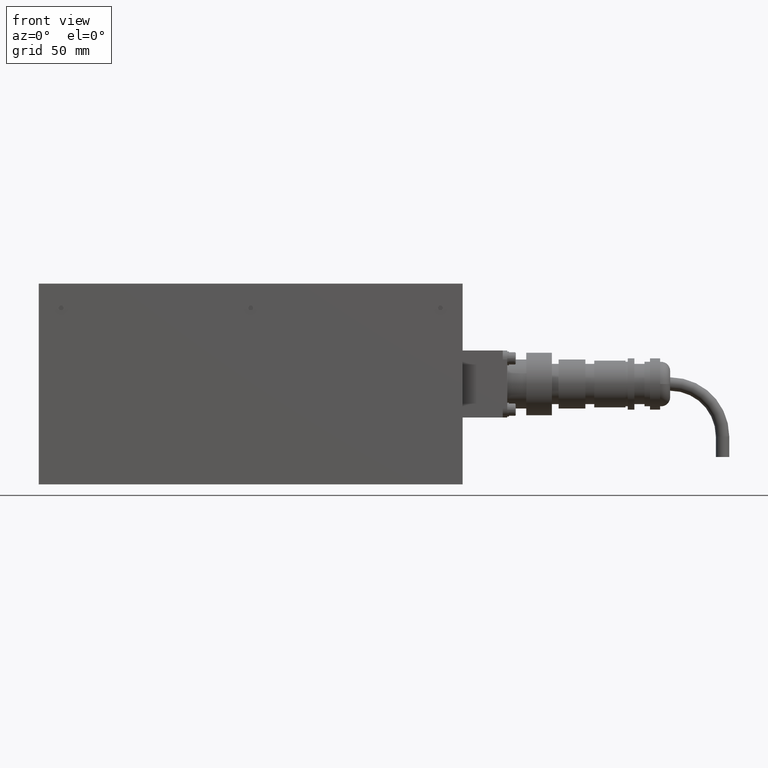
[diagram: clean part render]
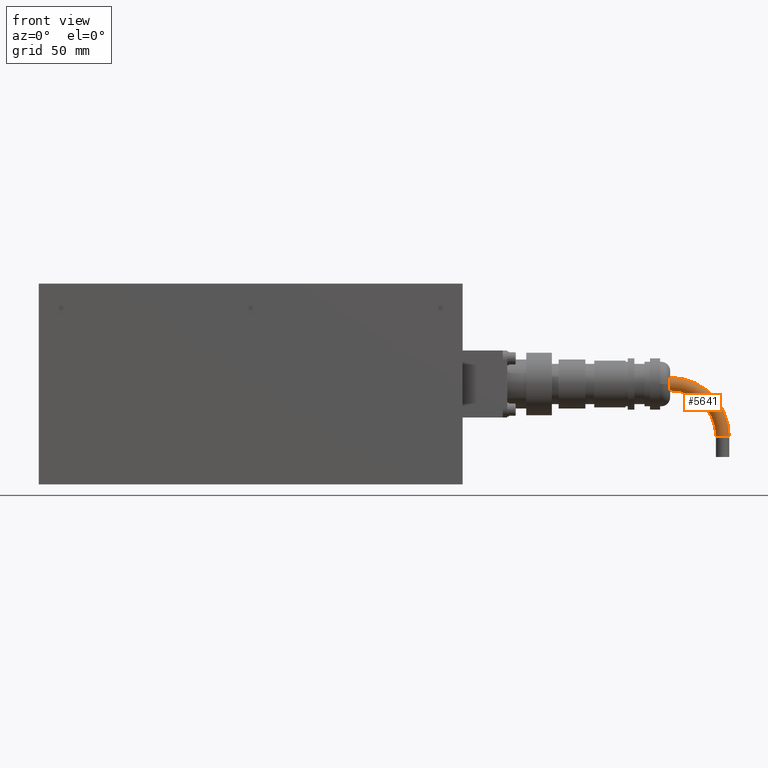
[diagram: same view with one face highlighted and labeled with its STEP entity id]
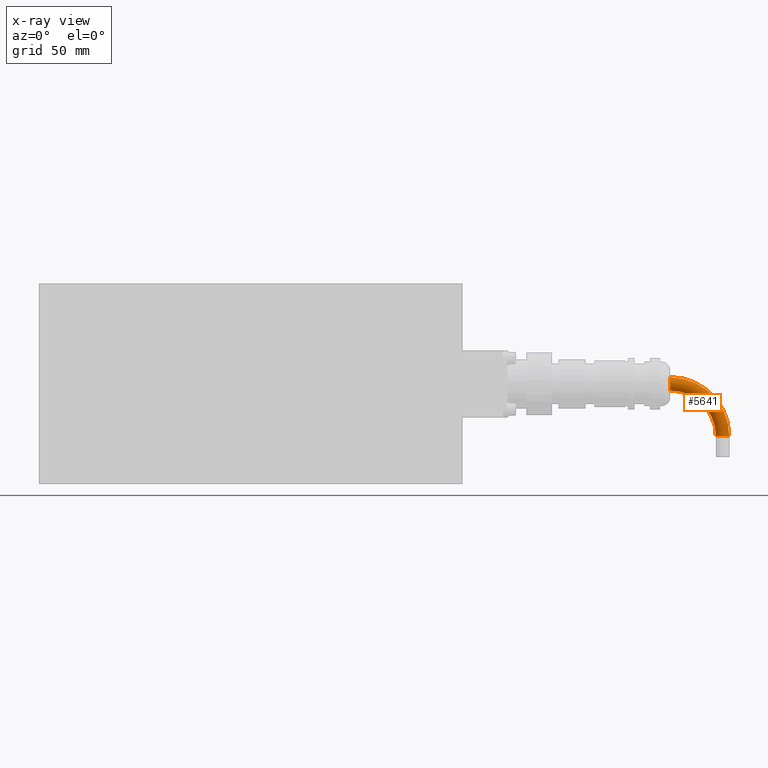
[diagram: x-ray of the same camera — body ghosted, the highlighted face saturated]
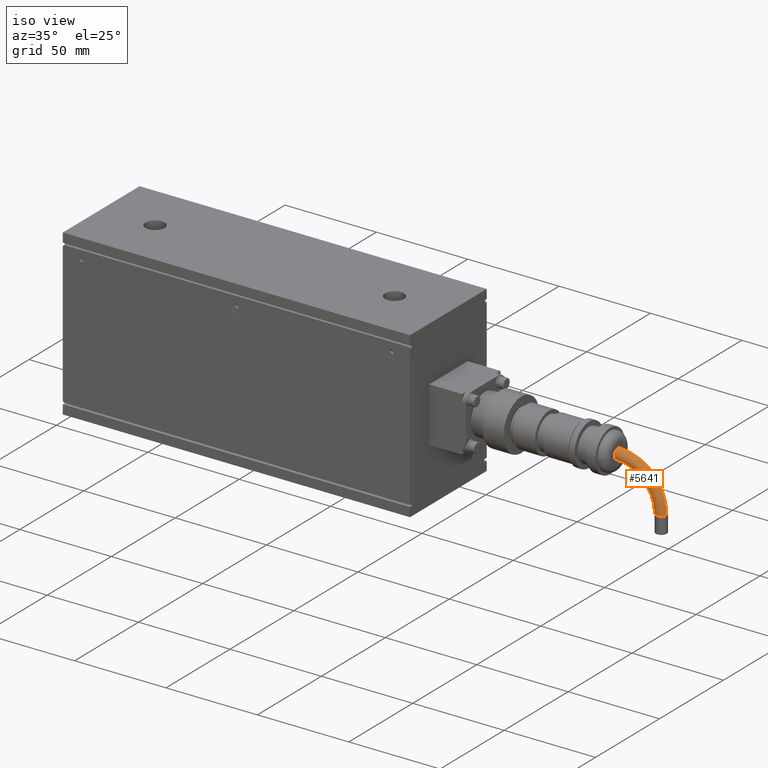
[diagram: same view with one face highlighted and labeled with its STEP entity id]
A machine part, front view. The second image highlights one B-rep face of the part: STEP entity #5641.
The next image is the same camera in x-ray: the body ghosted, the highlighted face saturated — about 0% of this face is hidden behind the body in this view.
A second angle (iso view) of the same face is appended — the face is thin or edge-on in the first view.
In plain terms, the highlighted toroidal blend (fillet) surface has major radius 23.4993 mm and minor (blend) radius 3 mm.
Its self-contained STEP definition (entity closure, byte-faithful):
#3573=CARTESIAN_POINT('',(-23.499300000003235,109.749299999999830,-3.673819E-016));
#3574=VERTEX_POINT('',#3573);
#3575=CARTESIAN_POINT('',(2.999999999996586,83.250000000000000,0.0));
#3576=VERTEX_POINT('',#3575);
#3577=CARTESIAN_POINT('',(-23.499300000003249,83.250000000000000,0.0));
#3578=DIRECTION('',(0.0,0.0,-1.0));
#3579=DIRECTION('',(1.0,0.0,0.0));
#3580=AXIS2_PLACEMENT_3D('',#3577,#3578,#3579);
#3581=CIRCLE('',#3580,26.499299999999835);
#3582=EDGE_CURVE('',#3574,#3576,#3581,.T.);
#3584=CARTESIAN_POINT('',(-23.499300000003235,103.749299999999830,0.0));
#3585=VERTEX_POINT('',#3584);
#3593=CARTESIAN_POINT('',(-3.000000000003413,83.250000000000000,0.0));
#3594=VERTEX_POINT('',#3593);
#3595=CARTESIAN_POINT('',(-23.499300000003249,83.250000000000000,-3.673819E-016));
#3596=DIRECTION('',(0.0,0.0,-1.0));
#3597=DIRECTION('',(1.0,0.0,0.0));
#3598=AXIS2_PLACEMENT_3D('',#3595,#3596,#3597);
#3599=CIRCLE('',#3598,20.499299999999835);
#3600=EDGE_CURVE('',#3585,#3594,#3599,.T.);
#3682=CARTESIAN_POINT('',(-23.499300000003231,106.749299999999830,0.0));
#3683=DIRECTION('',(1.0,0.0,0.0));
#3684=DIRECTION('',(0.0,-1.0,0.0));
#3685=AXIS2_PLACEMENT_3D('',#3682,#3683,#3684);
#3686=CIRCLE('',#3685,3.0);
#3687=EDGE_CURVE('',#3585,#3574,#3686,.T.);
#5172=CARTESIAN_POINT('',(-3.414158E-012,83.250000000000000,0.0));
#5173=DIRECTION('',(0.0,-1.0,0.0));
#5174=DIRECTION('',(0.0,0.0,1.0));
#5175=AXIS2_PLACEMENT_3D('',#5172,#5173,#5174);
#5176=CIRCLE('',#5175,3.0);
#5177=EDGE_CURVE('',#3594,#3576,#5176,.T.);
#5630=CARTESIAN_POINT('',(-23.499300000003249,83.250000000000000,0.0));
#5631=DIRECTION('',(0.0,0.0,1.0));
#5632=DIRECTION('',(1.0,0.0,0.0));
#5633=AXIS2_PLACEMENT_3D('',#5630,#5631,#5632);
#5634=TOROIDAL_SURFACE('',#5633,23.499299999999835,3.0);
#5635=ORIENTED_EDGE('',*,*,#3582,.T.);
#5636=ORIENTED_EDGE('',*,*,#5177,.F.);
#5637=ORIENTED_EDGE('',*,*,#3600,.F.);
#5638=ORIENTED_EDGE('',*,*,#3687,.T.);
#5639=EDGE_LOOP('',(#5635,#5636,#5637,#5638));
#5640=FACE_OUTER_BOUND('',#5639,.T.);
#5641=ADVANCED_FACE('',(#5640),#5634,.T.);